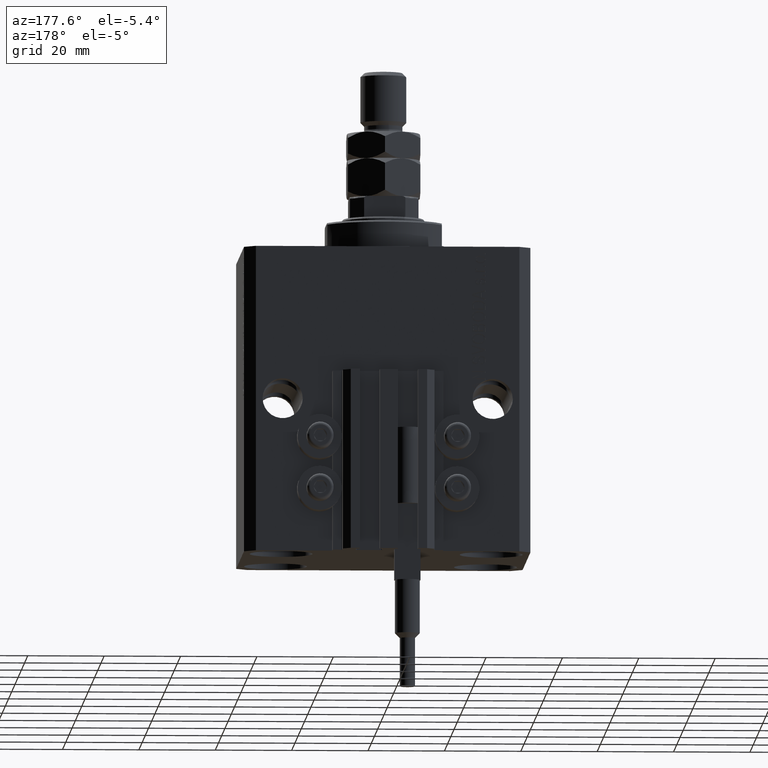
[diagram: clean part render]
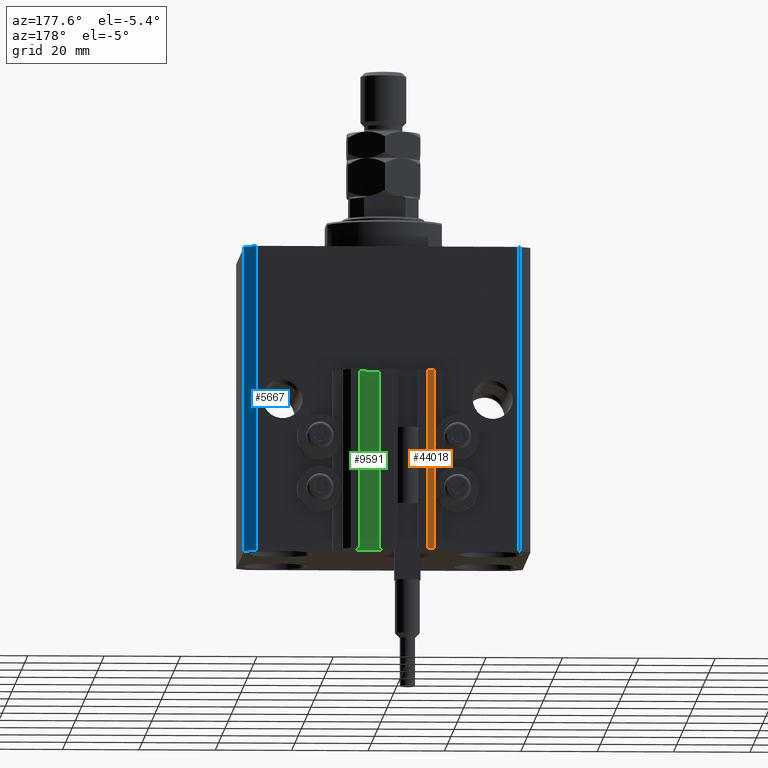
[diagram: same view with three faces highlighted in distinct colors, each labeled with its STEP entity id]
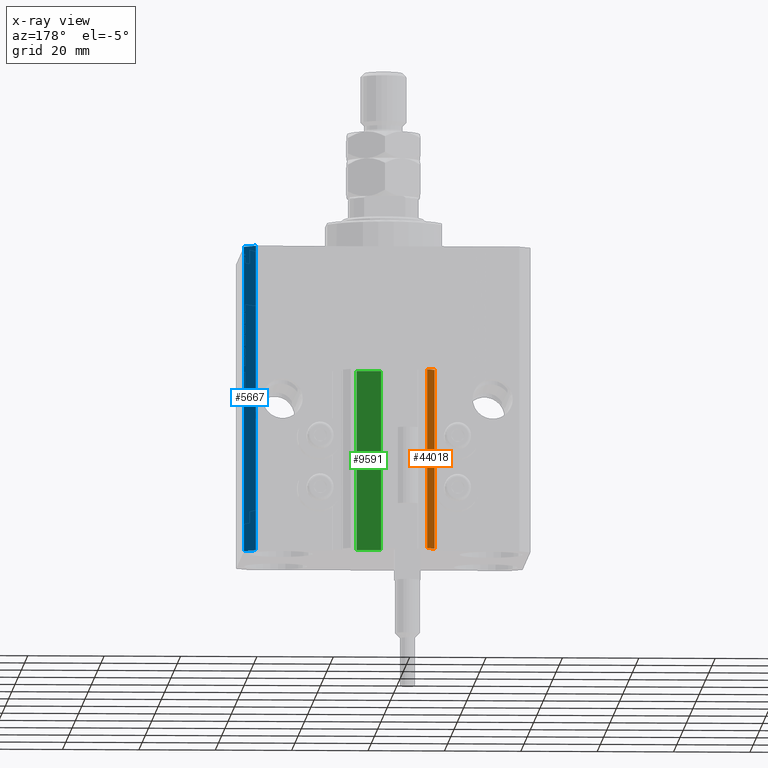
[diagram: x-ray of the same camera — body ghosted, the three highlighted faces saturated]
A machine part, auxiliary view with three faces highlighted in distinct colors.
The next image is the same camera in x-ray (body ghosted, the three faces saturated) — at least one of them is partly hidden behind the body in this view.
Their STEP definitions:

[orange] entity #44018 — the highlighted planar face has unit normal (-0.7071, 0.7071, 0).
#2157 = LINE ( 'NONE', #43938, #2457 ) ;
#2457 = VECTOR ( 'NONE', #47657, 1000.000000000000000 ) ;
#9309 = CARTESIAN_POINT ( 'NONE',  ( -10.00000000000000000, 35.50000000000000000, -80.00000000000000000 ) ) ;
#9849 = ORIENTED_EDGE ( 'NONE', *, *, #35472, .F. ) ;
#12494 = EDGE_CURVE ( 'NONE', #43912, #21035, #35768, .T. ) ;
#18233 = VERTEX_POINT ( 'NONE', #46432 ) ;
#20264 = FACE_OUTER_BOUND ( 'NONE', #37472, .T. ) ;
#21035 = VERTEX_POINT ( 'NONE', #31617 ) ;
#21985 = DIRECTION ( 'NONE',  ( -0.7071067811865460184, -0.7071067811865490160, 0.000000000000000000 ) ) ;
#22278 = DIRECTION ( 'NONE',  ( 0.000000000000000000, 0.000000000000000000, 1.000000000000000000 ) ) ;
#26246 = CARTESIAN_POINT ( 'NONE',  ( -10.00000000000000000, 35.50000000000000000, -33.00000000000000000 ) ) ;
#28493 = EDGE_CURVE ( 'NONE', #18233, #37206, #48596, .T. ) ;
#30224 = CARTESIAN_POINT ( 'NONE',  ( -10.00000000000000000, 35.50000000000000000, -80.00000000000000000 ) ) ;
#30772 = VECTOR ( 'NONE', #31810, 1000.000000000000227 ) ;
#31617 = CARTESIAN_POINT ( 'NONE',  ( -12.00000000000000000, 33.49999999999998579, -33.00000000000000000 ) ) ;
#31810 = DIRECTION ( 'NONE',  ( -0.7071067811865460184, -0.7071067811865490160, 0.000000000000000000 ) ) ;
#33395 = AXIS2_PLACEMENT_3D ( 'NONE', #9309, #39652, #35442 ) ;
#33962 = ORIENTED_EDGE ( 'NONE', *, *, #12494, .F. ) ;
#34836 = VECTOR ( 'NONE', #22278, 1000.000000000000000 ) ;
#35442 = DIRECTION ( 'NONE',  ( -0.7071067811865460184, -0.7071067811865489050, 0.000000000000000000 ) ) ;
#35472 = EDGE_CURVE ( 'NONE', #18233, #43912, #45402, .T. ) ;
#35768 = LINE ( 'NONE', #43946, #30772 ) ;
#36159 = PLANE ( 'NONE',  #33395 ) ;
#37206 = VERTEX_POINT ( 'NONE', #48652 ) ;
#37472 = EDGE_LOOP ( 'NONE', ( #33962, #9849, #37925, #40126 ) ) ;
#37925 = ORIENTED_EDGE ( 'NONE', *, *, #28493, .T. ) ;
#37945 = CARTESIAN_POINT ( 'NONE',  ( -10.00000000000000000, 35.50000000000000000, -80.00000000000000000 ) ) ;
#39652 = DIRECTION ( 'NONE',  ( -0.7071067811865490160, 0.7071067811865461294, 0.000000000000000000 ) ) ;
#40126 = ORIENTED_EDGE ( 'NONE', *, *, #46062, .T. ) ;
#42490 = VECTOR ( 'NONE', #21985, 1000.000000000000227 ) ;
#43912 = VERTEX_POINT ( 'NONE', #26246 ) ;
#43938 = CARTESIAN_POINT ( 'NONE',  ( -12.00000000000000000, 33.49999999999998579, -80.00000000000000000 ) ) ;
#43946 = CARTESIAN_POINT ( 'NONE',  ( -10.00000000000000000, 35.50000000000000000, -33.00000000000000000 ) ) ;
#44018 = ADVANCED_FACE ( 'NONE', ( #20264 ), #36159, .T. ) ;
#45402 = LINE ( 'NONE', #37945, #34836 ) ;
#46062 = EDGE_CURVE ( 'NONE', #37206, #21035, #2157, .T. ) ;
#46432 = CARTESIAN_POINT ( 'NONE',  ( -10.00000000000000000, 35.50000000000000000, -80.00000000000000000 ) ) ;
#47657 = DIRECTION ( 'NONE',  ( 0.000000000000000000, 0.000000000000000000, 1.000000000000000000 ) ) ;
#48596 = LINE ( 'NONE', #30224, #42490 ) ;
#48652 = CARTESIAN_POINT ( 'NONE',  ( -12.00000000000000000, 33.49999999999998579, -80.00000000000000000 ) ) ;

[blue] entity #5667 — the highlighted planar face has unit normal (0.7071, 0.7071, 0).
#502 = LINE ( 'NONE', #16186, #29404 ) ;
#1960 = DIRECTION ( 'NONE',  ( 0.7071067811865594521, 0.7071067811865356934, -0.000000000000000000 ) ) ;
#2179 = ORIENTED_EDGE ( 'NONE', *, *, #17159, .F. ) ;
#3582 = LINE ( 'NONE', #14044, #44267 ) ;
#4550 = CARTESIAN_POINT ( 'NONE',  ( 34.50000000000056843, 27.50000000000000000, -80.00000000000000000 ) ) ;
#5667 = ADVANCED_FACE ( 'NONE', ( #35800 ), #39524, .T. ) ;
#6415 = CARTESIAN_POINT ( 'NONE',  ( 37.50000000000051870, 24.49999999999995381, 0.000000000000000000 ) ) ;
#7296 = DIRECTION ( 'NONE',  ( 0.000000000000000000, 0.000000000000000000, 1.000000000000000000 ) ) ;
#8227 = DIRECTION ( 'NONE',  ( -0.7071067811865356934, 0.7071067811865594521, 0.000000000000000000 ) ) ;
#10454 = VERTEX_POINT ( 'NONE', #11983 ) ;
#10468 = ORIENTED_EDGE ( 'NONE', *, *, #20242, .T. ) ;
#11983 = CARTESIAN_POINT ( 'NONE',  ( 37.50000000000051870, 24.49999999999995381, -80.00000000000000000 ) ) ;
#13889 = EDGE_CURVE ( 'NONE', #10454, #25866, #3582, .T. ) ;
#13983 = VERTEX_POINT ( 'NONE', #31882 ) ;
#14044 = CARTESIAN_POINT ( 'NONE',  ( 37.50000000000051870, 24.49999999999995381, -80.00000000000000000 ) ) ;
#15004 = CARTESIAN_POINT ( 'NONE',  ( 34.50000000000056843, 27.50000000000000000, -80.00000000000000000 ) ) ;
#16186 = CARTESIAN_POINT ( 'NONE',  ( 37.50000000000051870, 24.49999999999995381, -80.00000000000000000 ) ) ;
#17138 = DIRECTION ( 'NONE',  ( -0.7071067811865356934, 0.7071067811865594521, 0.000000000000000000 ) ) ;
#17159 = EDGE_CURVE ( 'NONE', #25866, #13983, #41471, .T. ) ;
#19841 = EDGE_CURVE ( 'NONE', #33207, #13983, #26435, .T. ) ;
#20242 = EDGE_CURVE ( 'NONE', #10454, #33207, #502, .T. ) ;
#20290 = AXIS2_PLACEMENT_3D ( 'NONE', #24595, #1960, #17138 ) ;
#20605 = EDGE_LOOP ( 'NONE', ( #2179, #22395, #10468, #44160 ) ) ;
#22395 = ORIENTED_EDGE ( 'NONE', *, *, #13889, .F. ) ;
#24595 = CARTESIAN_POINT ( 'NONE',  ( 37.50000000000051870, 24.49999999999995381, -80.00000000000000000 ) ) ;
#25866 = VERTEX_POINT ( 'NONE', #37631 ) ;
#26435 = LINE ( 'NONE', #15004, #38154 ) ;
#29404 = VECTOR ( 'NONE', #8227, 1000.000000000000114 ) ;
#29804 = DIRECTION ( 'NONE',  ( -0.7071067811865356934, 0.7071067811865594521, 0.000000000000000000 ) ) ;
#31882 = CARTESIAN_POINT ( 'NONE',  ( 34.50000000000056843, 27.50000000000000000, 0.000000000000000000 ) ) ;
#33207 = VERTEX_POINT ( 'NONE', #4550 ) ;
#35800 = FACE_OUTER_BOUND ( 'NONE', #20605, .T. ) ;
#37166 = DIRECTION ( 'NONE',  ( 0.000000000000000000, 0.000000000000000000, 1.000000000000000000 ) ) ;
#37631 = CARTESIAN_POINT ( 'NONE',  ( 37.50000000000051870, 24.49999999999995381, 0.000000000000000000 ) ) ;
#38154 = VECTOR ( 'NONE', #7296, 1000.000000000000000 ) ;
#39524 = PLANE ( 'NONE',  #20290 ) ;
#41471 = LINE ( 'NONE', #6415, #46791 ) ;
#44160 = ORIENTED_EDGE ( 'NONE', *, *, #19841, .T. ) ;
#44267 = VECTOR ( 'NONE', #37166, 1000.000000000000000 ) ;
#46791 = VECTOR ( 'NONE', #29804, 1000.000000000000114 ) ;

[green] entity #9591 — the highlighted planar face has unit normal (-0, 1, 0).
#124 = LINE ( 'NONE', #3125, #34988 ) ;
#1051 = VERTEX_POINT ( 'NONE', #10482 ) ;
#1087 = EDGE_CURVE ( 'NONE', #4401, #48854, #16681, .T. ) ;
#3125 = CARTESIAN_POINT ( 'NONE',  ( 1.800000000000000933, 29.50000000000000000, -80.00000000000000000 ) ) ;
#3560 = CARTESIAN_POINT ( 'NONE',  ( 8.199999999999999289, 29.50000000000000711, -33.00000000000000000 ) ) ;
#3827 = VERTEX_POINT ( 'NONE', #5912 ) ;
#4401 = VERTEX_POINT ( 'NONE', #36565 ) ;
#5358 = EDGE_CURVE ( 'NONE', #48854, #3827, #29124, .T. ) ;
#5912 = CARTESIAN_POINT ( 'NONE',  ( 1.800000000000000933, 29.50000000000000000, -33.00000000000000000 ) ) ;
#7205 = VECTOR ( 'NONE', #17221, 1000.000000000000000 ) ;
#8923 = CARTESIAN_POINT ( 'NONE',  ( 8.199999999999999289, 29.50000000000000711, -80.00000000000000000 ) ) ;
#9591 = ADVANCED_FACE ( 'NONE', ( #34798 ), #27583, .T. ) ;
#10482 = CARTESIAN_POINT ( 'NONE',  ( 1.800000000000000933, 29.50000000000000000, -80.00000000000000000 ) ) ;
#12450 = EDGE_LOOP ( 'NONE', ( #24533, #43206, #29127, #23859 ) ) ;
#14320 = DIRECTION ( 'NONE',  ( 0.000000000000000000, 0.000000000000000000, 1.000000000000000000 ) ) ;
#16681 = LINE ( 'NONE', #43516, #28904 ) ;
#17221 = DIRECTION ( 'NONE',  ( -1.000000000000000000, -1.084202172485504828E-15, 0.000000000000000000 ) ) ;
#19920 = DIRECTION ( 'NONE',  ( 0.000000000000000000, 0.000000000000000000, 1.000000000000000000 ) ) ;
#20448 = EDGE_CURVE ( 'NONE', #1051, #3827, #124, .T. ) ;
#21613 = EDGE_CURVE ( 'NONE', #4401, #1051, #47060, .T. ) ;
#23859 = ORIENTED_EDGE ( 'NONE', *, *, #20448, .T. ) ;
#24533 = ORIENTED_EDGE ( 'NONE', *, *, #5358, .F. ) ;
#27429 = VECTOR ( 'NONE', #44281, 1000.000000000000000 ) ;
#27583 = PLANE ( 'NONE',  #33137 ) ;
#28904 = VECTOR ( 'NONE', #19920, 1000.000000000000000 ) ;
#29124 = LINE ( 'NONE', #40547, #27429 ) ;
#29127 = ORIENTED_EDGE ( 'NONE', *, *, #21613, .T. ) ;
#29146 = CARTESIAN_POINT ( 'NONE',  ( 8.199999999999999289, 29.50000000000000711, -80.00000000000000000 ) ) ;
#31816 = DIRECTION ( 'NONE',  ( -1.000000000000000000, -1.084202172485504828E-15, 0.000000000000000000 ) ) ;
#33137 = AXIS2_PLACEMENT_3D ( 'NONE', #8923, #42741, #31816 ) ;
#34798 = FACE_OUTER_BOUND ( 'NONE', #12450, .T. ) ;
#34988 = VECTOR ( 'NONE', #14320, 1000.000000000000000 ) ;
#36565 = CARTESIAN_POINT ( 'NONE',  ( 8.199999999999999289, 29.50000000000000711, -80.00000000000000000 ) ) ;
#40547 = CARTESIAN_POINT ( 'NONE',  ( 8.199999999999999289, 29.50000000000000711, -33.00000000000000000 ) ) ;
#42741 = DIRECTION ( 'NONE',  ( -1.084202172485504828E-15, 1.000000000000000000, 0.000000000000000000 ) ) ;
#43206 = ORIENTED_EDGE ( 'NONE', *, *, #1087, .F. ) ;
#43516 = CARTESIAN_POINT ( 'NONE',  ( 8.199999999999999289, 29.50000000000000711, -80.00000000000000000 ) ) ;
#44281 = DIRECTION ( 'NONE',  ( -1.000000000000000000, -1.084202172485504828E-15, 0.000000000000000000 ) ) ;
#47060 = LINE ( 'NONE', #29146, #7205 ) ;
#48854 = VERTEX_POINT ( 'NONE', #3560 ) ;